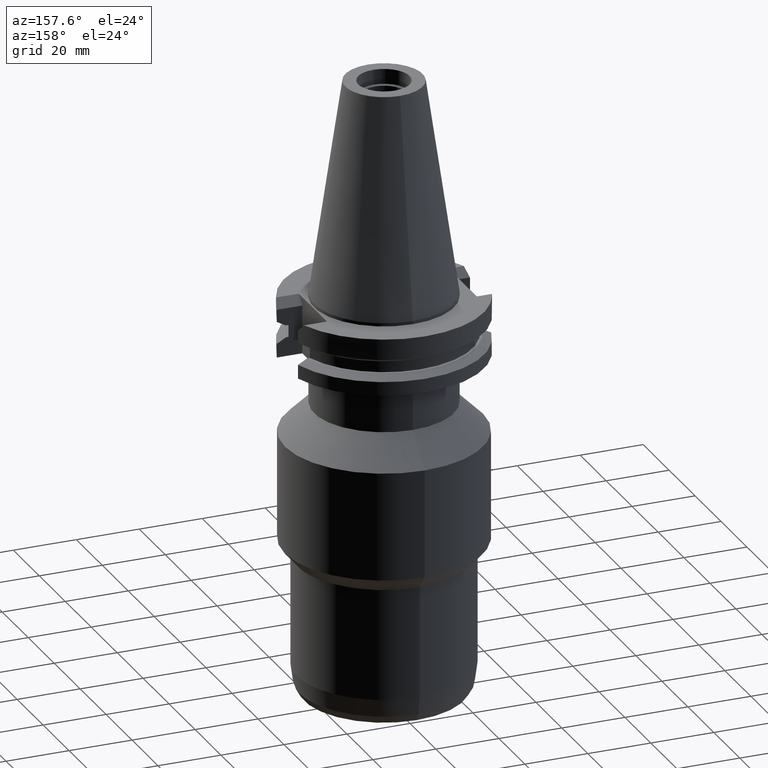
[diagram: clean part render]
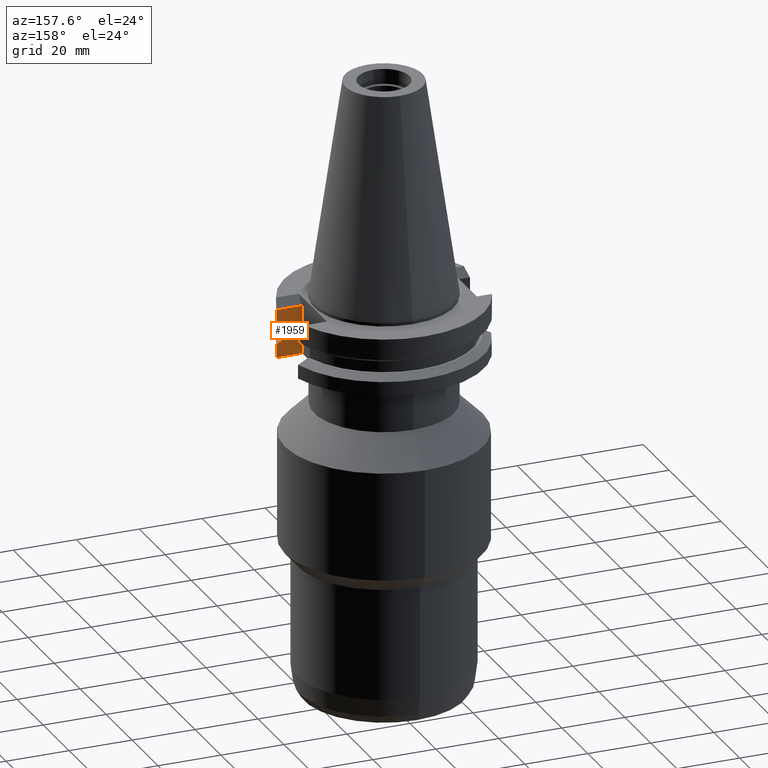
[diagram: same view with one face highlighted and labeled with its STEP entity id]
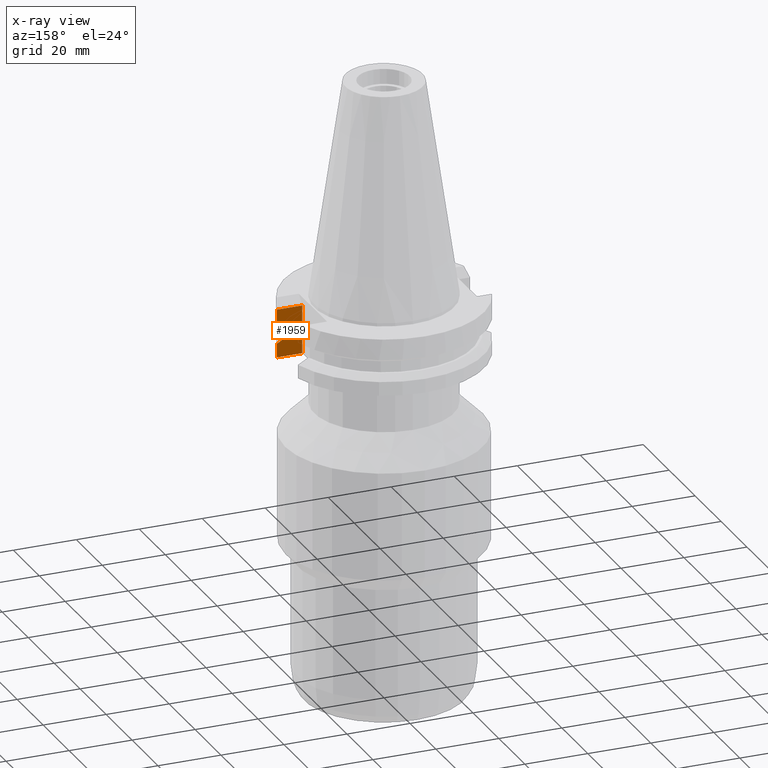
[diagram: x-ray of the same camera — body ghosted, the highlighted face saturated]
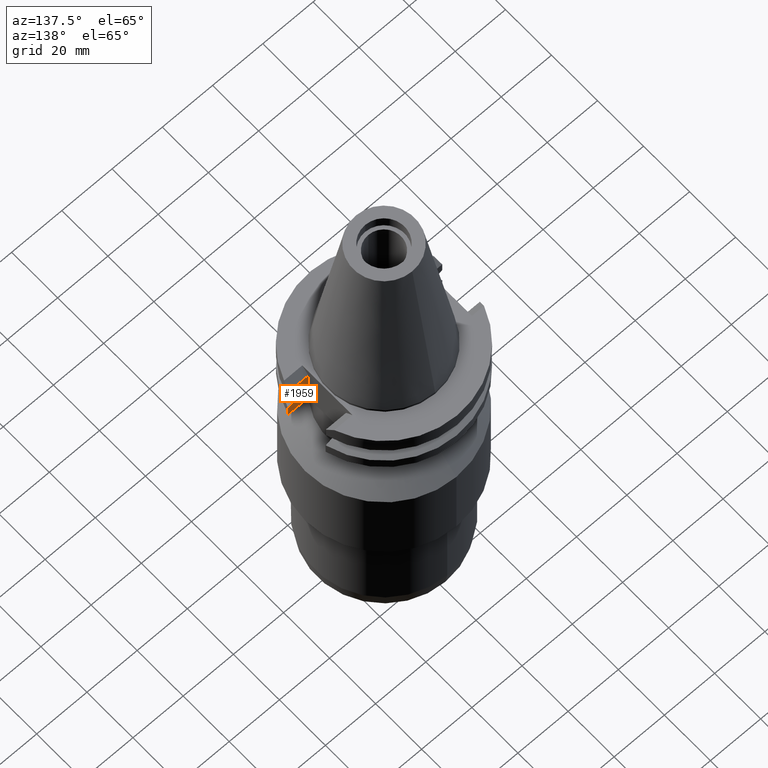
[diagram: same view with one face highlighted and labeled with its STEP entity id]
A machine part, auxiliary view. The second image highlights one B-rep face of the part: STEP entity #1959.
The next image is the same camera in x-ray: the body ghosted, the highlighted face saturated — about 0% of this face is hidden behind the body in this view.
A second angle (auxiliary view) of the same face is appended — the face is thin or edge-on in the first view.
In plain terms, the highlighted planar face has unit normal (0, -1, 0).
Its self-contained STEP definition (entity closure, byte-faithful):
#170=DIRECTION('',(0.E0,0.E0,1.E0));
#171=VECTOR('',#170,1.535E1);
#172=CARTESIAN_POINT('',(2.257E1,-8.19E0,-1.905E1));
#173=LINE('',#172,#171);
#583=DIRECTION('',(-4.149952334243E-8,-1.554361652636E-7,-1.E0));
#584=VECTOR('',#583,3.901327811715E0);
#585=CARTESIAN_POINT('',(3.067550162589E1,-8.19E0,-3.7E0));
#586=LINE('',#585,#584);
#605=DIRECTION('',(1.E0,0.E0,0.E0));
#606=VECTOR('',#605,8.105501625890E0);
#607=CARTESIAN_POINT('',(2.257E1,-8.19E0,-1.905E1));
#608=LINE('',#607,#606);
#612=DIRECTION('',(1.E0,-2.321065065017E-7,-1.019313692923E-12));
#613=VECTOR('',#612,8.225538752381E-1);
#614=CARTESIAN_POINT('',(2.696361066326E1,-8.19E0,-9.2075E0));
#615=LINE('',#614,#613);
#619=CARTESIAN_POINT('',(2.778616453850E1,-8.190000190920E0,-9.207500000001E0));
#620=CARTESIAN_POINT('',(2.810749132278E1,-8.190000190920E0,-9.029550869185E0));
#621=CARTESIAN_POINT('',(2.874991655705E1,-8.189999991758E0,-8.673260600819E0));
#622=CARTESIAN_POINT('',(2.971304241111E1,-8.189999742466E0,-8.137892857314E0));
#623=CARTESIAN_POINT('',(3.035472199995E1,-8.190000606407E0,-7.780262222225E0));
#624=CARTESIAN_POINT('',(3.067550146399E1,-8.190000606407E0,-7.601327811715E0));
#629=DIRECTION('',(-1.E0,0.E0,0.E0));
#630=VECTOR('',#629,8.105501625890E0);
#631=CARTESIAN_POINT('',(3.067550162589E1,-8.19E0,-3.7E0));
#632=LINE('',#631,#630);
#636=DIRECTION('',(3.682729011232E-8,1.379365253949E-7,-1.E0));
#637=VECTOR('',#636,4.396327811887E0);
#638=CARTESIAN_POINT('',(3.067550146399E1,-8.190000606414E0,-1.465367218811E1));
#639=LINE('',#638,#637);
#729=DIRECTION('',(0.E0,0.E0,-1.E0));
#730=VECTOR('',#729,3.84E0);
#731=CARTESIAN_POINT('',(2.696361066326E1,-8.19E0,-9.2075E0));
#732=LINE('',#731,#730);
#743=DIRECTION('',(1.E0,-2.321247894208E-7,3.995191382183E-13));
#744=VECTOR('',#743,8.225538750274E-1);
#745=CARTESIAN_POINT('',(2.696361066326E1,-8.19E0,-1.30475E1));
#746=LINE('',#745,#744);
#782=CARTESIAN_POINT('',(2.778616453829E1,-8.190000190935E0,-1.30475E1));
#783=CARTESIAN_POINT('',(2.809992330951E1,-8.190000190935E0,-1.322125800387E1));
#784=CARTESIAN_POINT('',(2.873227896420E1,-8.189999991752E0,-1.357192199977E1));
#785=CARTESIAN_POINT('',(2.969538043627E1,-8.189999742465E0,-1.410733229529E1));
#786=CARTESIAN_POINT('',(3.034716665531E1,-8.190000606414E0,-1.447052332097E1));
#787=CARTESIAN_POINT('',(3.067550146399E1,-8.190000606414E0,-1.465367218811E1));
#1383=CARTESIAN_POINT('',(2.257E1,-8.19E0,-1.905E1));
#1385=VERTEX_POINT('',#1383);
#1399=CARTESIAN_POINT('',(3.067550162589E1,-8.19E0,-1.905E1));
#1401=VERTEX_POINT('',#1399);
#1402=CARTESIAN_POINT('',(2.257E1,-8.19E0,-3.7E0));
#1403=VERTEX_POINT('',#1402);
#1410=CARTESIAN_POINT('',(3.067550146399E1,-8.190000606414E0,
-1.465367218811E1));
#1411=VERTEX_POINT('',#1410);
#1412=VERTEX_POINT('',#782);
#1413=CARTESIAN_POINT('',(2.696361066326E1,-8.19E0,-1.30475E1));
#1414=VERTEX_POINT('',#1413);
#1415=CARTESIAN_POINT('',(2.696361066326E1,-8.19E0,-9.2075E0));
#1416=VERTEX_POINT('',#1415);
#1417=CARTESIAN_POINT('',(2.778616453850E1,-8.190000190920E0,
-9.207500000001E0));
#1418=VERTEX_POINT('',#1417);
#1419=VERTEX_POINT('',#624);
#1420=CARTESIAN_POINT('',(3.067550162589E1,-8.19E0,-3.7E0));
#1421=VERTEX_POINT('',#1420);
#1936=CARTESIAN_POINT('',(2.257E1,-8.19E0,-3.7E0));
#1937=DIRECTION('',(0.E0,-1.E0,0.E0));
#1938=DIRECTION('',(0.E0,0.E0,-1.E0));
#1939=AXIS2_PLACEMENT_3D('',#1936,#1937,#1938);
#1940=PLANE('',#1939);
#1941=ORIENTED_EDGE('',*,*,#1663,.T.);
#1943=ORIENTED_EDGE('',*,*,#1942,.F.);
#1945=ORIENTED_EDGE('',*,*,#1944,.F.);
#1947=ORIENTED_EDGE('',*,*,#1946,.F.);
#1949=ORIENTED_EDGE('',*,*,#1948,.F.);
#1951=ORIENTED_EDGE('',*,*,#1950,.T.);
#1953=ORIENTED_EDGE('',*,*,#1952,.T.);
#1954=ORIENTED_EDGE('',*,*,#1909,.F.);
#1955=ORIENTED_EDGE('',*,*,#1931,.T.);
#1956=ORIENTED_EDGE('',*,*,#1629,.F.);
#1957=EDGE_LOOP('',(#1941,#1943,#1945,#1947,#1949,#1951,#1953,#1954,#1955,
#1956));
#1958=FACE_OUTER_BOUND('',#1957,.F.);
#625=B_SPLINE_CURVE_WITH_KNOTS('',3,(#619,#620,#621,#622,#623,#624),
.UNSPECIFIED.,.F.,.F.,(4,1,1,4),(0.E0,3.333333333333E-1,6.666666666667E-1,1.E0),
.UNSPECIFIED.);
#788=B_SPLINE_CURVE_WITH_KNOTS('',3,(#782,#783,#784,#785,#786,#787),
.UNSPECIFIED.,.F.,.F.,(4,1,1,4),(0.E0,3.333333333333E-1,6.666666666667E-1,1.E0),
.UNSPECIFIED.);
#1629=EDGE_CURVE('',#1385,#1403,#173,.T.);
#1663=EDGE_CURVE('',#1385,#1401,#608,.T.);
#1909=EDGE_CURVE('',#1421,#1419,#586,.T.);
#1931=EDGE_CURVE('',#1421,#1403,#632,.T.);
#1942=EDGE_CURVE('',#1411,#1401,#639,.T.);
#1944=EDGE_CURVE('',#1412,#1411,#788,.T.);
#1946=EDGE_CURVE('',#1414,#1412,#746,.T.);
#1948=EDGE_CURVE('',#1416,#1414,#732,.T.);
#1950=EDGE_CURVE('',#1416,#1418,#615,.T.);
#1952=EDGE_CURVE('',#1418,#1419,#625,.T.);
#1959=ADVANCED_FACE('',(#1958),#1940,.F.);